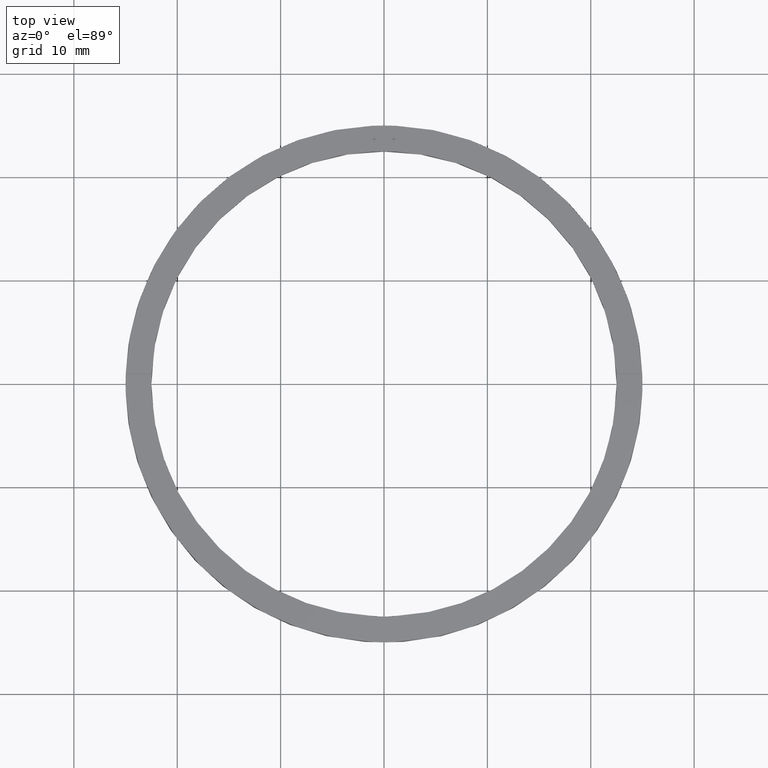
[diagram: clean part render]
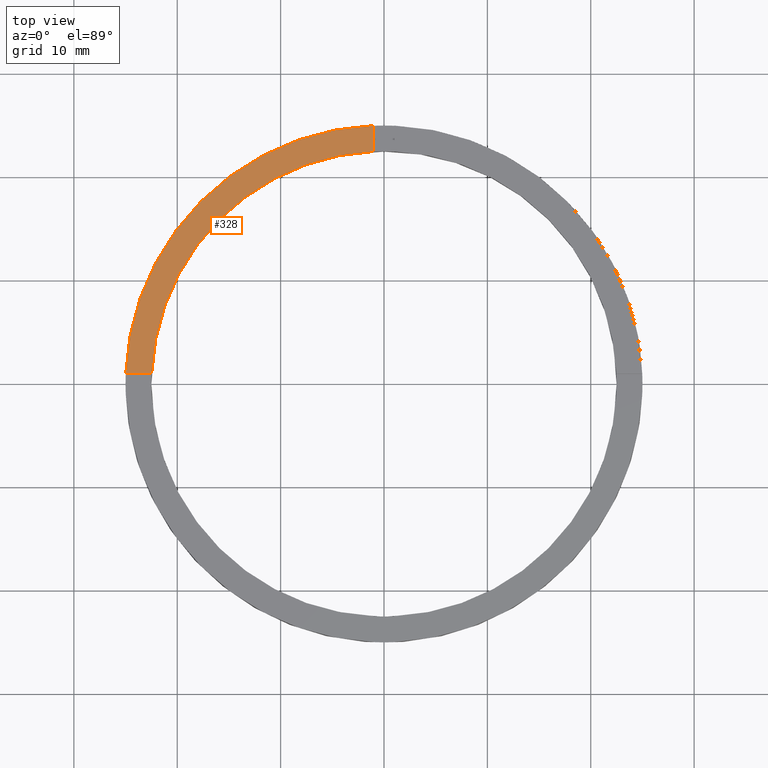
[diagram: same view with one face highlighted and labeled with its STEP entity id]
A machine part, top view. The second image highlights one B-rep face of the part: STEP entity #328.
In plain terms, the highlighted planar face has unit normal (0, 0, 1).
Its self-contained STEP definition (entity closure, byte-faithful):
#27 = DIRECTION ( 'NONE',  ( -1.000000000000000000, -1.734723475976807341E-16, 0.000000000000000000 ) ) ;
#76 = DIRECTION ( 'NONE',  ( 1.000000000000000000, 0.000000000000000000, 0.000000000000000000 ) ) ;
#94 = CARTESIAN_POINT ( 'NONE',  ( -1.000000000000025979, 22.47776679298902636, 2.500000000000000000 ) ) ;
#107 = DIRECTION ( 'NONE',  ( 1.000000000000000000, 0.000000000000000000, -0.000000000000000000 ) ) ;
#118 = DIRECTION ( 'NONE',  ( 0.000000000000000000, 0.000000000000000000, 1.000000000000000000 ) ) ;
#146 = VERTEX_POINT ( 'NONE', #598 ) ;
#191 = ORIENTED_EDGE ( 'NONE', *, *, #222, .T. ) ;
#202 = LINE ( 'NONE', #614, #747 ) ;
#209 = ORIENTED_EDGE ( 'NONE', *, *, #374, .F. ) ;
#210 = LINE ( 'NONE', #649, #474 ) ;
#222 = EDGE_CURVE ( 'NONE', #490, #783, #425, .T. ) ;
#237 = AXIS2_PLACEMENT_3D ( 'NONE', #557, #395, #549 ) ;
#265 = CARTESIAN_POINT ( 'NONE',  ( -24.97999199359359679, 0.9999999999999740208, 2.500000000000000000 ) ) ;
#328 = ADVANCED_FACE ( 'NONE', ( #437 ), #403, .T. ) ;
#330 = EDGE_CURVE ( 'NONE', #429, #146, #727, .T. ) ;
#372 = EDGE_CURVE ( 'NONE', #490, #429, #210, .T. ) ;
#374 = EDGE_CURVE ( 'NONE', #146, #783, #202, .T. ) ;
#383 = DIRECTION ( 'NONE',  ( 0.000000000000000000, 0.000000000000000000, 1.000000000000000000 ) ) ;
#395 = DIRECTION ( 'NONE',  ( 0.000000000000000000, 0.000000000000000000, 1.000000000000000000 ) ) ;
#403 = PLANE ( 'NONE',  #734 ) ;
#425 = CIRCLE ( 'NONE', #771, 25.00000000000000000 ) ;
#429 = VERTEX_POINT ( 'NONE', #94 ) ;
#436 = ORIENTED_EDGE ( 'NONE', *, *, #372, .F. ) ;
#437 = FACE_OUTER_BOUND ( 'NONE', #746, .T. ) ;
#474 = VECTOR ( 'NONE', #737, 1000.000000000000000 ) ;
#490 = VERTEX_POINT ( 'NONE', #640 ) ;
#511 = ORIENTED_EDGE ( 'NONE', *, *, #330, .F. ) ;
#549 = DIRECTION ( 'NONE',  ( 1.000000000000000000, 0.000000000000000000, 0.000000000000000000 ) ) ;
#557 = CARTESIAN_POINT ( 'NONE',  ( 0.000000000000000000, 0.000000000000000000, 2.500000000000000000 ) ) ;
#594 = CARTESIAN_POINT ( 'NONE',  ( 0.000000000000000000, 0.000000000000000000, 2.500000000000000000 ) ) ;
#598 = CARTESIAN_POINT ( 'NONE',  ( -22.47776679298902636, 0.9999999999999744649, 2.500000000000000000 ) ) ;
#614 = CARTESIAN_POINT ( 'NONE',  ( -15.00000000000018652, 0.9999999999999756861, 2.500000000000000000 ) ) ;
#640 = CARTESIAN_POINT ( 'NONE',  ( -1.000000000000025979, 24.97999199359359679, 2.500000000000000000 ) ) ;
#649 = CARTESIAN_POINT ( 'NONE',  ( -1.000000000000025979, 15.00000000000000178, 2.500000000000000000 ) ) ;
#727 = CIRCLE ( 'NONE', #237, 22.50000000000000355 ) ;
#728 = CARTESIAN_POINT ( 'NONE',  ( 0.000000000000000000, 0.000000000000000000, 2.500000000000000000 ) ) ;
#734 = AXIS2_PLACEMENT_3D ( 'NONE', #728, #118, #107 ) ;
#737 = DIRECTION ( 'NONE',  ( -0.000000000000000000, -1.000000000000000000, -0.000000000000000000 ) ) ;
#746 = EDGE_LOOP ( 'NONE', ( #436, #191, #209, #511 ) ) ;
#747 = VECTOR ( 'NONE', #27, 1000.000000000000000 ) ;
#771 = AXIS2_PLACEMENT_3D ( 'NONE', #594, #383, #76 ) ;
#783 = VERTEX_POINT ( 'NONE', #265 ) ;